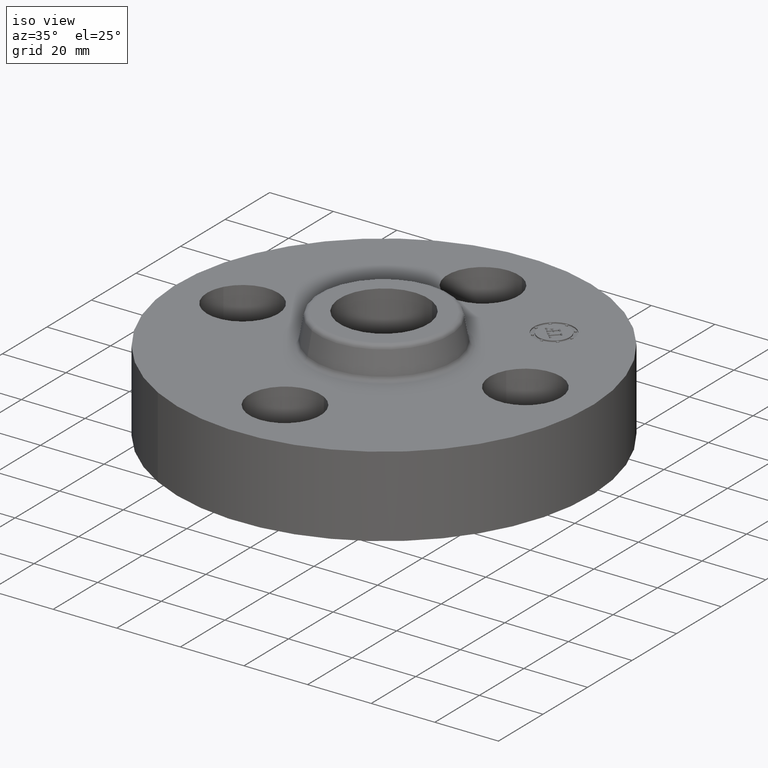
[diagram: clean part render]
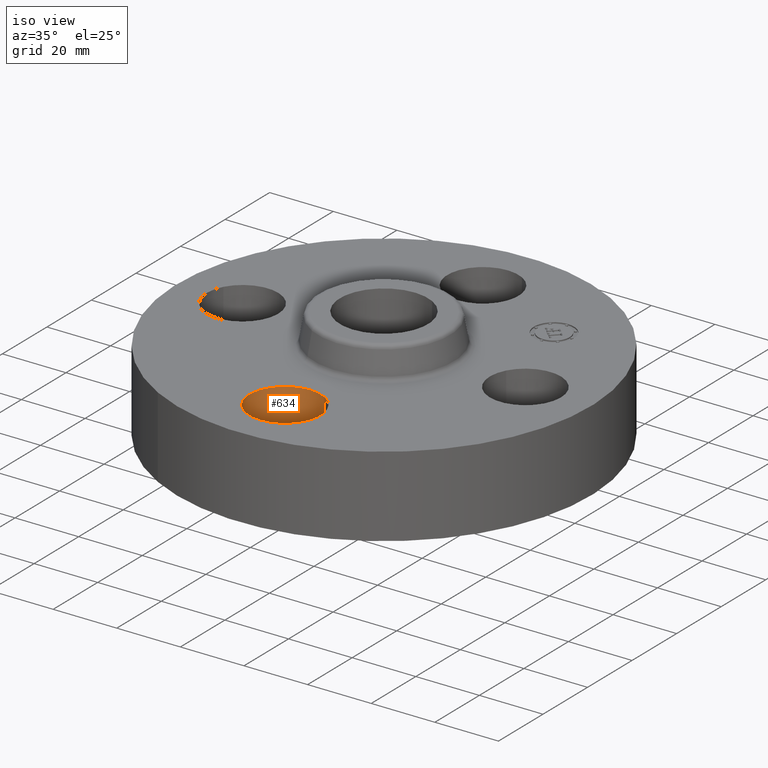
[diagram: same view with one face highlighted and labeled with its STEP entity id]
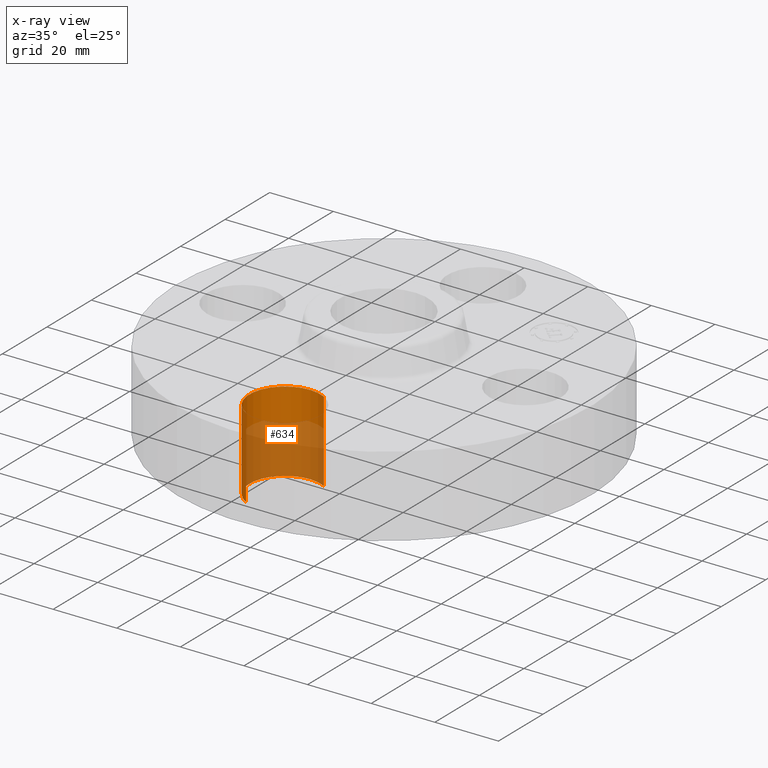
[diagram: x-ray of the same camera — body ghosted, the highlighted face saturated]
A machine part, iso view. The second image highlights one B-rep face of the part: STEP entity #634.
The next image is the same camera in x-ray: the body ghosted, the highlighted face saturated — about 59% of this face is hidden behind the body in this view.
In plain terms, the highlighted cylindrical surface (partial cylindrical patch) has radius 11.176 mm, axis along (0, -0, -1).
Its self-contained STEP definition (entity closure, byte-faithful):
#462=AXIS2_PLACEMENT_3D('Circle Axis2P3D',#460,#461,$) ;
#595=AXIS2_PLACEMENT_3D('Cylinder Axis2P3D',#592,#593,#594) ;
#625=AXIS2_PLACEMENT_3D('Circle Axis2P3D',#623,#624,$) ;
#455=CARTESIAN_POINT('Vertex',(0.210947236987,-1.36386367277,0.)) ;
#457=CARTESIAN_POINT('Vertex',(-0.210947236987,-2.13613632724,0.)) ;
#460=CARTESIAN_POINT('Axis2P3D Location',(3.49676543189E-017,-1.75000000001,0.)) ;
#592=CARTESIAN_POINT('Axis2P3D Location',(1.07156594926E-016,-1.75000000001,0.99606299213)) ;
#597=CARTESIAN_POINT('Line Origine',(0.210947236987,-1.36386367277,0.500000000002)) ;
#601=CARTESIAN_POINT('Vertex',(0.210947236987,-1.36386367277,1.)) ;
#604=CARTESIAN_POINT('Line Origine',(-0.210947236987,-2.13613632724,0.500000000002)) ;
#608=CARTESIAN_POINT('Vertex',(-0.210947236987,-2.13613632724,1.)) ;
#623=CARTESIAN_POINT('Axis2P3D Location',(1.07156594926E-016,-1.75000000001,1.)) ;
#461=DIRECTION('Axis2P3D Direction',(0.,0.,-0.0393700787402)) ;
#593=DIRECTION('Axis2P3D Direction',(0.,-0.,-0.0393700787402)) ;
#594=DIRECTION('Axis2P3D XDirection',(-0.0188750212049,-0.0345504945626,0.)) ;
#598=DIRECTION('Vector Direction',(0.,0.,-0.0393700787402)) ;
#605=DIRECTION('Vector Direction',(0.,0.,-0.0393700787402)) ;
#624=DIRECTION('Axis2P3D Direction',(0.,-0.,-0.0393700787402)) ;
#599=VECTOR('Line Direction',#598,0.0393700787402) ;
#606=VECTOR('Line Direction',#605,0.0393700787402) ;
#629=ORIENTED_EDGE('',*,*,#610,.F.) ;
#630=ORIENTED_EDGE('',*,*,#464,.T.) ;
#631=ORIENTED_EDGE('',*,*,#603,.T.) ;
#632=ORIENTED_EDGE('',*,*,#627,.F.) ;
#634=ADVANCED_FACE('PartBody',(#633),#596,.F.) ;
#463=CIRCLE('generated circle',#462,0.440000000002) ;
#626=CIRCLE('generated circle',#625,0.440000000002) ;
#596=CYLINDRICAL_SURFACE('generated cylinder',#595,0.440000000002) ;
#464=EDGE_CURVE('',#458,#456,#463,.T.) ;
#603=EDGE_CURVE('',#456,#602,#600,.F.) ;
#610=EDGE_CURVE('',#458,#609,#607,.F.) ;
#627=EDGE_CURVE('',#609,#602,#626,.T.) ;
#628=EDGE_LOOP('',(#629,#630,#631,#632)) ;
#633=FACE_OUTER_BOUND('',#628,.T.) ;
#600=LINE('Line',#597,#599) ;
#607=LINE('Line',#604,#606) ;
#456=VERTEX_POINT('',#455) ;
#458=VERTEX_POINT('',#457) ;
#602=VERTEX_POINT('',#601) ;
#609=VERTEX_POINT('',#608) ;